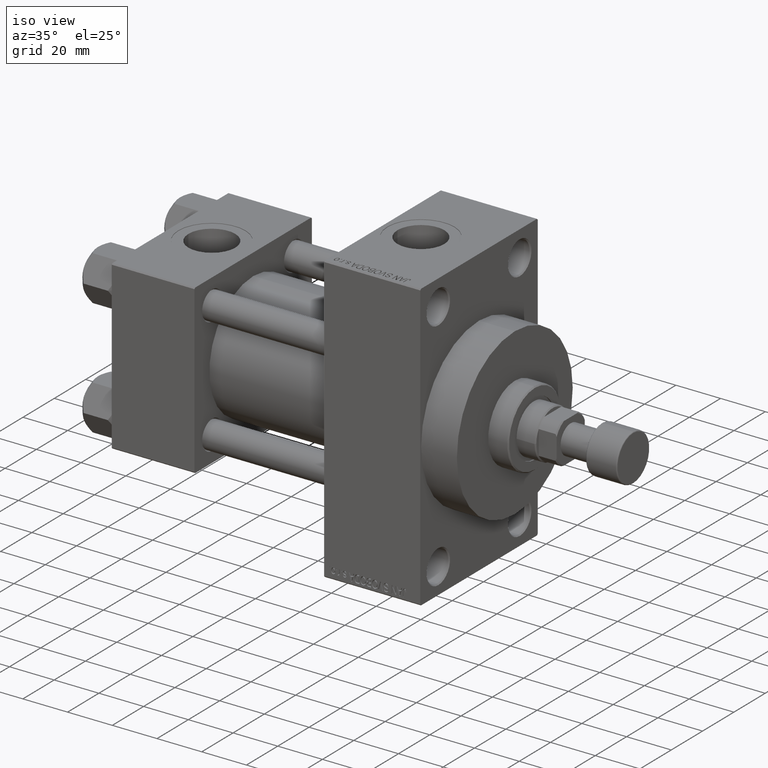
[diagram: clean part render]
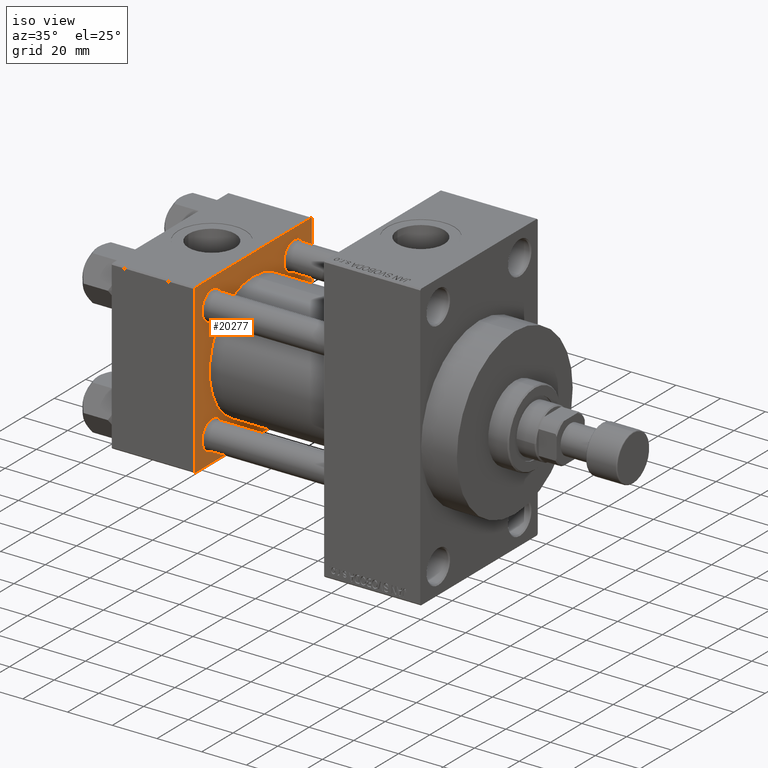
[diagram: same view with one face highlighted and labeled with its STEP entity id]
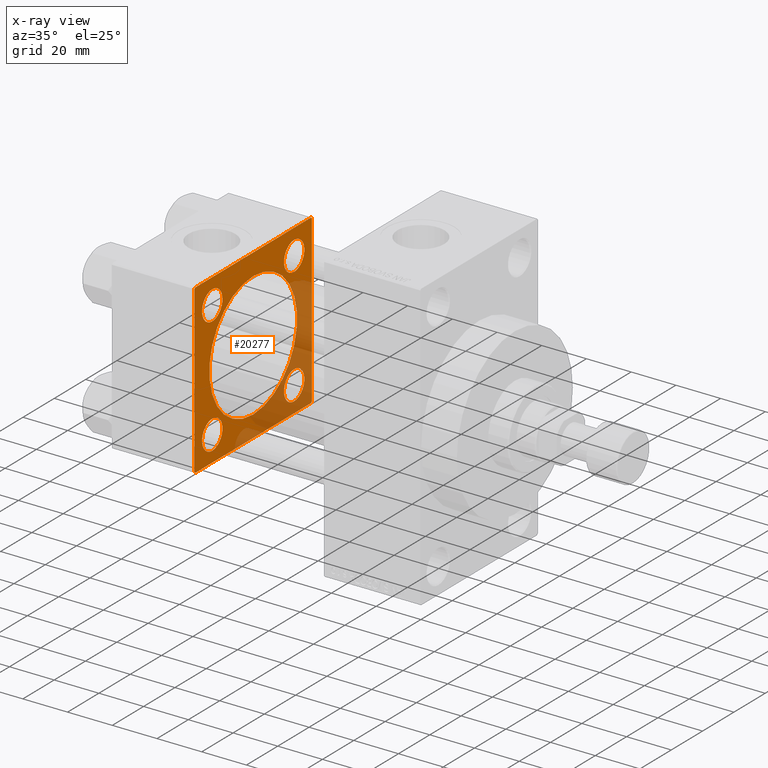
[diagram: x-ray of the same camera — body ghosted, the highlighted face saturated]
A machine part, iso view. The second image highlights one B-rep face of the part: STEP entity #20277.
The next image is the same camera in x-ray: the body ghosted, the highlighted face saturated — about 32% of this face is hidden behind the body in this view.
In plain terms, the highlighted planar face has unit normal (-1, 0, 0).
Its self-contained STEP definition (entity closure, byte-faithful):
#747 = DIRECTION ( 'NONE',  ( 0.000000000000000000, 0.000000000000000000, -1.000000000000000000 ) ) ;
#1095 = FACE_BOUND ( 'NONE', #28408, .T. ) ;
#1758 = CARTESIAN_POINT ( 'NONE',  ( 37.00000000000000000, 37.49999999999999289, -37.50000000000000000 ) ) ;
#1933 = DIRECTION ( 'NONE',  ( 0.000000000000000000, -0.7071067811865474617, 0.7071067811865474617 ) ) ;
#2134 = LINE ( 'NONE', #31250, #11946 ) ;
#2323 = DIRECTION ( 'NONE',  ( 0.000000000000000000, 0.000000000000000000, 1.000000000000000000 ) ) ;
#2982 = EDGE_CURVE ( 'NONE', #10596, #33467, #47021, .T. ) ;
#3142 = VERTEX_POINT ( 'NONE', #28271 ) ;
#3183 = VERTEX_POINT ( 'NONE', #31654 ) ;
#3425 = VECTOR ( 'NONE', #12892, 1000.000000000000114 ) ;
#3540 = EDGE_CURVE ( 'NONE', #23348, #3142, #25492, .T. ) ;
#3888 = CIRCLE ( 'NONE', #39228, 6.500000000000002665 ) ;
#4103 = VECTOR ( 'NONE', #13050, 1000.000000000000000 ) ;
#4230 = FACE_BOUND ( 'NONE', #15101, .T. ) ;
#4858 = ORIENTED_EDGE ( 'NONE', *, *, #13205, .T. ) ;
#4953 = VECTOR ( 'NONE', #26593, 1000.000000000000000 ) ;
#5174 = DIRECTION ( 'NONE',  ( -0.000000000000000000, 0.000000000000000000, 1.000000000000000000 ) ) ;
#5521 = DIRECTION ( 'NONE',  ( 0.000000000000000000, 0.000000000000000000, 1.000000000000000000 ) ) ;
#5706 = LINE ( 'NONE', #33711, #25803 ) ;
#6629 = CARTESIAN_POINT ( 'NONE',  ( 37.00000000000000000, -37.00000000000000711, 37.49999999999999289 ) ) ;
#6863 = DIRECTION ( 'NONE',  ( -1.000000000000000000, 0.000000000000000000, -0.000000000000000000 ) ) ;
#7438 = DIRECTION ( 'NONE',  ( 0.000000000000000000, 9.251858538542971581E-17, -1.000000000000000000 ) ) ;
#7560 = CARTESIAN_POINT ( 'NONE',  ( 37.00000000000000000, -26.14999999999999147, -26.15000000000000924 ) ) ;
#7775 = VERTEX_POINT ( 'NONE', #7962 ) ;
#7891 = CARTESIAN_POINT ( 'NONE',  ( 37.00000000000000000, -2.602085213965210642E-15, 0.000000000000000000 ) ) ;
#7956 = EDGE_CURVE ( 'NONE', #41769, #43110, #19857, .T. ) ;
#7962 = CARTESIAN_POINT ( 'NONE',  ( 37.00000000000000000, -37.00000000000002132, -37.50000000000000711 ) ) ;
#8791 = FACE_OUTER_BOUND ( 'NONE', #29292, .T. ) ;
#8892 = DIRECTION ( 'NONE',  ( 0.000000000000000000, -1.000000000000000000, -9.251858538542971581E-17 ) ) ;
#9046 = CARTESIAN_POINT ( 'NONE',  ( 37.00000000000000000, -37.50000000000000711, 36.99999999999999289 ) ) ;
#10579 = CARTESIAN_POINT ( 'NONE',  ( 37.00000000000000000, -37.50000000000000711, 37.49999999999999289 ) ) ;
#10596 = VERTEX_POINT ( 'NONE', #46030 ) ;
#10659 = EDGE_CURVE ( 'NONE', #29369, #7775, #12819, .T. ) ;
#10879 = AXIS2_PLACEMENT_3D ( 'NONE', #25903, #17961, #37223 ) ;
#11283 = AXIS2_PLACEMENT_3D ( 'NONE', #28544, #27194, #5521 ) ;
#11907 = VERTEX_POINT ( 'NONE', #44506 ) ;
#11919 = LINE ( 'NONE', #30677, #4953 ) ;
#11946 = VECTOR ( 'NONE', #8892, 1000.000000000000000 ) ;
#12051 = ORIENTED_EDGE ( 'NONE', *, *, #27142, .T. ) ;
#12154 = FACE_BOUND ( 'NONE', #13914, .T. ) ;
#12496 = CIRCLE ( 'NONE', #40147, 28.00000000000000000 ) ;
#12819 = LINE ( 'NONE', #1758, #4103 ) ;
#12824 = CARTESIAN_POINT ( 'NONE',  ( 37.00000000000000000, -26.14999999999999147, 26.15000000000000924 ) ) ;
#12865 = CARTESIAN_POINT ( 'NONE',  ( 37.00000000000000000, 37.49999999999999289, -36.99999999999998579 ) ) ;
#12892 = DIRECTION ( 'NONE',  ( -0.000000000000000000, 0.7071067811865474617, 0.7071067811865474617 ) ) ;
#13050 = DIRECTION ( 'NONE',  ( 0.000000000000000000, -1.000000000000000000, -9.251858538542972814E-17 ) ) ;
#13054 = DIRECTION ( 'NONE',  ( 0.000000000000000000, 0.000000000000000000, 1.000000000000000000 ) ) ;
#13205 = EDGE_CURVE ( 'NONE', #29369, #18568, #23021, .T. ) ;
#13914 = EDGE_LOOP ( 'NONE', ( #12051, #40934 ) ) ;
#14300 = DIRECTION ( 'NONE',  ( -1.000000000000000000, 0.000000000000000000, -0.000000000000000000 ) ) ;
#14384 = EDGE_CURVE ( 'NONE', #11907, #41769, #2134, .T. ) ;
#14515 = VERTEX_POINT ( 'NONE', #43260 ) ;
#14649 = LINE ( 'NONE', #10579, #28142 ) ;
#15044 = PLANE ( 'NONE',  #32856 ) ;
#15101 = EDGE_LOOP ( 'NONE', ( #36888, #26768 ) ) ;
#15116 = VECTOR ( 'NONE', #1933, 1000.000000000000114 ) ;
#15768 = EDGE_CURVE ( 'NONE', #47607, #18568, #5706, .T. ) ;
#15966 = CARTESIAN_POINT ( 'NONE',  ( 37.00000000000000000, -37.50000000000000711, 36.99999999999999289 ) ) ;
#16308 = AXIS2_PLACEMENT_3D ( 'NONE', #22574, #47368, #43752 ) ;
#16325 = VECTOR ( 'NONE', #30469, 1000.000000000000114 ) ;
#17149 = ORIENTED_EDGE ( 'NONE', *, *, #34625, .T. ) ;
#17387 = CIRCLE ( 'NONE', #11283, 6.500000000000002665 ) ;
#17498 = EDGE_CURVE ( 'NONE', #43110, #31087, #14649, .T. ) ;
#17790 = ORIENTED_EDGE ( 'NONE', *, *, #43021, .T. ) ;
#17912 = AXIS2_PLACEMENT_3D ( 'NONE', #21299, #6863, #39831 ) ;
#17918 = ORIENTED_EDGE ( 'NONE', *, *, #7956, .T. ) ;
#17961 = DIRECTION ( 'NONE',  ( 1.000000000000000000, -0.000000000000000000, 0.000000000000000000 ) ) ;
#18169 = CARTESIAN_POINT ( 'NONE',  ( 37.00000000000000000, -26.14999999999999147, -32.65000000000006963 ) ) ;
#18239 = EDGE_CURVE ( 'NONE', #14515, #23850, #17387, .T. ) ;
#18309 = CARTESIAN_POINT ( 'NONE',  ( 37.00000000000000000, 37.49999999999999289, 37.00000000000000000 ) ) ;
#18568 = VERTEX_POINT ( 'NONE', #12865 ) ;
#19857 = LINE ( 'NONE', #9046, #16325 ) ;
#19964 = LINE ( 'NONE', #27664, #15116 ) ;
#20031 = DIRECTION ( 'NONE',  ( -1.000000000000000000, 0.000000000000000000, -0.000000000000000000 ) ) ;
#20197 = ORIENTED_EDGE ( 'NONE', *, *, #38638, .T. ) ;
#20277 = ADVANCED_FACE ( 'NONE', ( #12154, #4230, #1095, #37665, #45138, #8791 ), #15044, .F. ) ;
#21299 = CARTESIAN_POINT ( 'NONE',  ( 37.00000000000000000, -26.14999999999999147, -26.15000000000000924 ) ) ;
#21898 = DIRECTION ( 'NONE',  ( 0.000000000000000000, 0.000000000000000000, 1.000000000000000000 ) ) ;
#22021 = CARTESIAN_POINT ( 'NONE',  ( 37.00000000000000000, 26.14999999999999858, 32.65000000000001279 ) ) ;
#22574 = CARTESIAN_POINT ( 'NONE',  ( 37.00000000000000000, 26.14999999999999858, 26.15000000000000213 ) ) ;
#22618 = EDGE_CURVE ( 'NONE', #47607, #11907, #19964, .T. ) ;
#23021 = LINE ( 'NONE', #44941, #3425 ) ;
#23348 = VERTEX_POINT ( 'NONE', #25919 ) ;
#23457 = CARTESIAN_POINT ( 'NONE',  ( 37.00000000000000000, 0.000000000000000000, 0.000000000000000000 ) ) ;
#23476 = CARTESIAN_POINT ( 'NONE',  ( 37.00000000000000000, 26.14999999999999858, 26.15000000000000213 ) ) ;
#23677 = ORIENTED_EDGE ( 'NONE', *, *, #10659, .F. ) ;
#23850 = VERTEX_POINT ( 'NONE', #46526 ) ;
#23864 = CIRCLE ( 'NONE', #43072, 6.500000000000064837 ) ;
#23981 = CARTESIAN_POINT ( 'NONE',  ( 37.00000000000000000, 26.14999999999999858, -26.15000000000000213 ) ) ;
#24350 = DIRECTION ( 'NONE',  ( 0.000000000000000000, 0.000000000000000000, 1.000000000000000000 ) ) ;
#24919 = VERTEX_POINT ( 'NONE', #34223 ) ;
#25492 = CIRCLE ( 'NONE', #27055, 6.500000000000064837 ) ;
#25803 = VECTOR ( 'NONE', #747, 1000.000000000000000 ) ;
#25903 = CARTESIAN_POINT ( 'NONE',  ( 37.00000000000000000, -2.602085213965210642E-15, 0.000000000000000000 ) ) ;
#25919 = CARTESIAN_POINT ( 'NONE',  ( 37.00000000000000000, -26.14999999999999147, 32.65000000000007674 ) ) ;
#26593 = DIRECTION ( 'NONE',  ( 0.000000000000000000, 0.7071067811865524577, -0.7071067811865426878 ) ) ;
#26768 = ORIENTED_EDGE ( 'NONE', *, *, #18239, .T. ) ;
#27055 = AXIS2_PLACEMENT_3D ( 'NONE', #12824, #20031, #13054 ) ;
#27142 = EDGE_CURVE ( 'NONE', #45170, #24919, #28302, .T. ) ;
#27194 = DIRECTION ( 'NONE',  ( -1.000000000000000000, 0.000000000000000000, -0.000000000000000000 ) ) ;
#27664 = CARTESIAN_POINT ( 'NONE',  ( 37.00000000000000000, 36.99999999999999289, 37.50000000000000000 ) ) ;
#27824 = DIRECTION ( 'NONE',  ( -1.000000000000000000, 0.000000000000000000, -0.000000000000000000 ) ) ;
#27847 = CIRCLE ( 'NONE', #16308, 6.500000000000002665 ) ;
#28142 = VECTOR ( 'NONE', #7438, 1000.000000000000000 ) ;
#28271 = CARTESIAN_POINT ( 'NONE',  ( 37.00000000000000000, -26.14999999999999147, 19.64999999999994529 ) ) ;
#28302 = CIRCLE ( 'NONE', #33710, 6.500000000000057732 ) ;
#28408 = EDGE_LOOP ( 'NONE', ( #17149, #33153 ) ) ;
#28544 = CARTESIAN_POINT ( 'NONE',  ( 37.00000000000000000, 26.14999999999999858, -26.15000000000000213 ) ) ;
#29292 = EDGE_LOOP ( 'NONE', ( #23677, #4858, #42860, #37536, #31055, #17918, #45304, #17790 ) ) ;
#29369 = VERTEX_POINT ( 'NONE', #45895 ) ;
#29596 = EDGE_LOOP ( 'NONE', ( #42321, #37784 ) ) ;
#30132 = CARTESIAN_POINT ( 'NONE',  ( 37.00000000000000000, 8.269258236473776482E-16, -28.00000000000000000 ) ) ;
#30448 = DIRECTION ( 'NONE',  ( -1.000000000000000000, 0.000000000000000000, -0.000000000000000000 ) ) ;
#30469 = DIRECTION ( 'NONE',  ( -0.000000000000000000, -0.7071067811865474617, -0.7071067811865474617 ) ) ;
#30496 = ORIENTED_EDGE ( 'NONE', *, *, #35155, .T. ) ;
#30677 = CARTESIAN_POINT ( 'NONE',  ( 37.00000000000000000, -37.00000000000002132, -37.50000000000000711 ) ) ;
#31055 = ORIENTED_EDGE ( 'NONE', *, *, #14384, .T. ) ;
#31087 = VERTEX_POINT ( 'NONE', #45562 ) ;
#31250 = CARTESIAN_POINT ( 'NONE',  ( 37.00000000000000000, 37.49999999999999289, 37.50000000000000000 ) ) ;
#31654 = CARTESIAN_POINT ( 'NONE',  ( 37.00000000000000000, 26.14999999999999858, 19.64999999999999858 ) ) ;
#32365 = DIRECTION ( 'NONE',  ( 0.000000000000000000, 0.000000000000000000, 1.000000000000000000 ) ) ;
#32693 = DIRECTION ( 'NONE',  ( 0.000000000000000000, 0.000000000000000000, 1.000000000000000000 ) ) ;
#32856 = AXIS2_PLACEMENT_3D ( 'NONE', #23457, #30448, #5174 ) ;
#32976 = DIRECTION ( 'NONE',  ( -1.000000000000000000, 0.000000000000000000, -0.000000000000000000 ) ) ;
#33153 = ORIENTED_EDGE ( 'NONE', *, *, #3540, .T. ) ;
#33467 = VERTEX_POINT ( 'NONE', #30132 ) ;
#33710 = AXIS2_PLACEMENT_3D ( 'NONE', #7560, #14300, #32365 ) ;
#33711 = CARTESIAN_POINT ( 'NONE',  ( 37.00000000000000000, 37.49999999999999289, 37.50000000000000000 ) ) ;
#34223 = CARTESIAN_POINT ( 'NONE',  ( 37.00000000000000000, -26.14999999999999147, -19.64999999999995239 ) ) ;
#34625 = EDGE_CURVE ( 'NONE', #3142, #23348, #23864, .T. ) ;
#35155 = EDGE_CURVE ( 'NONE', #3183, #45113, #3888, .T. ) ;
#36297 = CIRCLE ( 'NONE', #38608, 6.500000000000002665 ) ;
#36888 = ORIENTED_EDGE ( 'NONE', *, *, #38845, .T. ) ;
#37223 = DIRECTION ( 'NONE',  ( 0.000000000000000000, 0.000000000000000000, 1.000000000000000000 ) ) ;
#37536 = ORIENTED_EDGE ( 'NONE', *, *, #22618, .T. ) ;
#37665 = FACE_BOUND ( 'NONE', #45414, .T. ) ;
#37784 = ORIENTED_EDGE ( 'NONE', *, *, #38626, .F. ) ;
#38157 = DIRECTION ( 'NONE',  ( -1.000000000000000000, 0.000000000000000000, -0.000000000000000000 ) ) ;
#38608 = AXIS2_PLACEMENT_3D ( 'NONE', #23981, #27824, #2323 ) ;
#38626 = EDGE_CURVE ( 'NONE', #33467, #10596, #12496, .T. ) ;
#38638 = EDGE_CURVE ( 'NONE', #45113, #3183, #27847, .T. ) ;
#38845 = EDGE_CURVE ( 'NONE', #23850, #14515, #36297, .T. ) ;
#39228 = AXIS2_PLACEMENT_3D ( 'NONE', #23476, #38157, #24350 ) ;
#39831 = DIRECTION ( 'NONE',  ( 0.000000000000000000, 0.000000000000000000, 1.000000000000000000 ) ) ;
#40147 = AXIS2_PLACEMENT_3D ( 'NONE', #7891, #40860, #32693 ) ;
#40673 = CARTESIAN_POINT ( 'NONE',  ( 37.00000000000000000, -26.14999999999999147, 26.15000000000000924 ) ) ;
#40860 = DIRECTION ( 'NONE',  ( 1.000000000000000000, -0.000000000000000000, 0.000000000000000000 ) ) ;
#40934 = ORIENTED_EDGE ( 'NONE', *, *, #40979, .T. ) ;
#40979 = EDGE_CURVE ( 'NONE', #24919, #45170, #40987, .T. ) ;
#40987 = CIRCLE ( 'NONE', #17912, 6.500000000000057732 ) ;
#41769 = VERTEX_POINT ( 'NONE', #6629 ) ;
#42321 = ORIENTED_EDGE ( 'NONE', *, *, #2982, .F. ) ;
#42860 = ORIENTED_EDGE ( 'NONE', *, *, #15768, .F. ) ;
#43021 = EDGE_CURVE ( 'NONE', #31087, #7775, #11919, .T. ) ;
#43072 = AXIS2_PLACEMENT_3D ( 'NONE', #40673, #32976, #21898 ) ;
#43110 = VERTEX_POINT ( 'NONE', #15966 ) ;
#43260 = CARTESIAN_POINT ( 'NONE',  ( 37.00000000000000000, 26.14999999999999858, -19.65000000000000213 ) ) ;
#43752 = DIRECTION ( 'NONE',  ( 0.000000000000000000, 0.000000000000000000, 1.000000000000000000 ) ) ;
#44506 = CARTESIAN_POINT ( 'NONE',  ( 37.00000000000000000, 36.99999999999999289, 37.50000000000000000 ) ) ;
#44941 = CARTESIAN_POINT ( 'NONE',  ( 37.00000000000000000, 37.49999999999999289, -36.99999999999998579 ) ) ;
#45113 = VERTEX_POINT ( 'NONE', #22021 ) ;
#45138 = FACE_BOUND ( 'NONE', #29596, .T. ) ;
#45170 = VERTEX_POINT ( 'NONE', #18169 ) ;
#45304 = ORIENTED_EDGE ( 'NONE', *, *, #17498, .T. ) ;
#45414 = EDGE_LOOP ( 'NONE', ( #30496, #20197 ) ) ;
#45562 = CARTESIAN_POINT ( 'NONE',  ( 37.00000000000000000, -37.50000000000000000, -37.00000000000003553 ) ) ;
#45895 = CARTESIAN_POINT ( 'NONE',  ( 37.00000000000000000, 36.99999999999997868, -37.50000000000000000 ) ) ;
#46030 = CARTESIAN_POINT ( 'NONE',  ( 37.00000000000000000, -2.602085213965210642E-15, 28.00000000000000000 ) ) ;
#46526 = CARTESIAN_POINT ( 'NONE',  ( 37.00000000000000000, 26.14999999999999858, -32.65000000000000568 ) ) ;
#47021 = CIRCLE ( 'NONE', #10879, 28.00000000000000000 ) ;
#47368 = DIRECTION ( 'NONE',  ( -1.000000000000000000, 0.000000000000000000, -0.000000000000000000 ) ) ;
#47607 = VERTEX_POINT ( 'NONE', #18309 ) ;